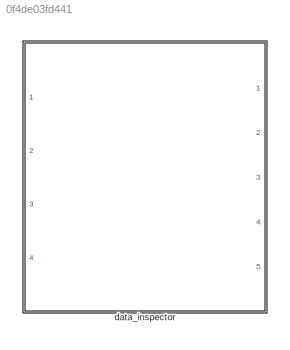
MODEL slx_0f4de03fd441
KIND library
CONFIG AbsTol = auto
CONFIG EnableMultiTasking = off
CONFIG FixedStep = auto
CONFIG MaxStep = auto
CONFIG MinStep = auto
CONFIG RelTol = 1e-3
CONFIG SampleTimeConstraint = Unconstrained
CONFIG Solver = VariableStepAuto
CONFIG SolverName = VariableStepAuto
CONFIG StartTime = 0.0
CONFIG StopTime = 10.0
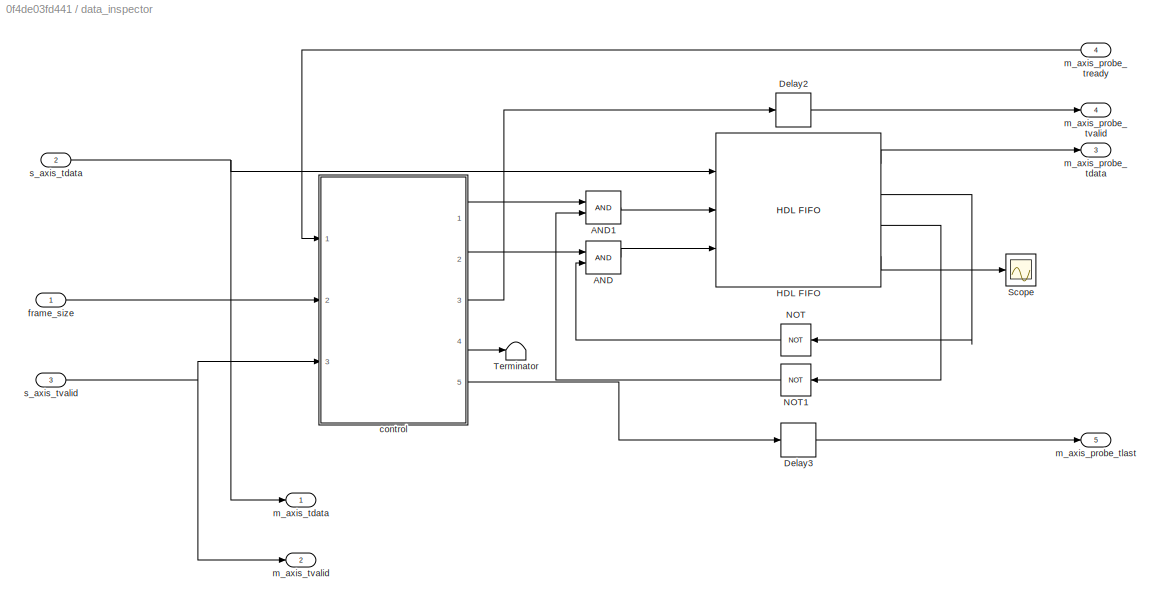
BLOCK [SubSystem] data_inspector
  Ports = [4, 5]
  RequestExecContextInheritance = off
  TreatAsAtomicUnit = on
BLOCK [Logic] data_inspector/AND
  AllPortsSameDT = off
  OutDataTypeStr = boolean
  Ports = [2, 1]
BLOCK [Logic] data_inspector/AND1
  AllPortsSameDT = off
  OutDataTypeStr = boolean
  Ports = [2, 1]
BLOCK [Delay] data_inspector/Delay2
  DelayLength = 1
  InputPortMap = u0
  Ports = [1, 1]
BLOCK [Delay] data_inspector/Delay3
  DelayLength = 1
  InputPortMap = u0
  Ports = [1, 1]
BLOCK [Reference] data_inspector/HDL FIFO  REF=hdlsllib/HDL RAMs/HDL FIFO
  Ports = [3, 4]
  SourceBlock = hdlsllib/HDL RAMs/HDL FIFO
  SourceProductBaseCode = SL
  SourceType = HDL_FIFO
BLOCK [Logic] data_inspector/NOT
  AllPortsSameDT = off
  IconShape = distinctive
  NameLocation = top
  Operator = NOT
  OutDataTypeStr = boolean
  Ports = [1, 1]
BLOCK [Logic] data_inspector/NOT1
  AllPortsSameDT = off
  IconShape = distinctive
  NameLocation = top
  Operator = NOT
  OutDataTypeStr = boolean
  Ports = [1, 1]
BLOCK [Scope] data_inspector/Scope
  Floating = off
  NumInputPorts = 1
  Ports = [1]
  ScopeSpecificationString = Simulink.scopes.TimeScopeBlockCfg('CurrentConfiguration', extmgr.ConfigurationSet(extmgr.Configuration('Core','General UI',true),extmgr.Configuration('Core','Source UI',true),extmgr.Configuration('Sources','WiredSimulink',true),extmgr.Configuration('Visuals','Time Domain',true,'SerializedDisplays',{struct('MinYLimReal','-1.125','MaxYLimReal','10.125','YLabelReal','','MinYLimMag','0.00000','MaxYLim...<+1348ch>
BLOCK [Terminator] data_inspector/Terminator
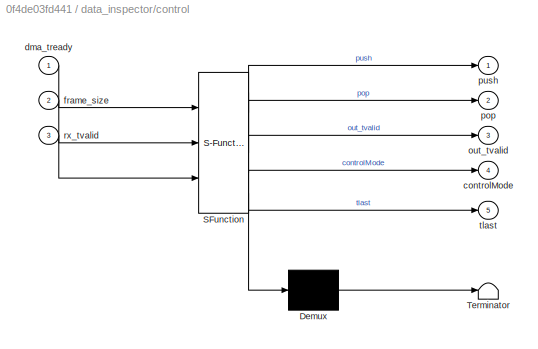
BLOCK [SubSystem] data_inspector/control
  ErrorFcn = Stateflow.Translate.translate
  PermitHierarchicalResolution = ExplicitOnly
  Ports = [3, 5]
  RequestExecContextInheritance = off
  SFBlockType = Chart
  TreatAsAtomicUnit = on
BLOCK [Demux] data_inspector/control/ Demux 
  Outputs = 1
  Ports = [1, 1]
BLOCK [S-Function] data_inspector/control/ SFunction 
  EnableBusSupport = on
  FunctionName = sf_sfun
  PortCounts = [3 6]
  Ports = [3, 6]
  SFcnIsStateOwnerBlock = off
  SFunctionDeploymentMode = off
  Tag = Stateflow S-Function 3
BLOCK [Terminator] data_inspector/control/ Terminator 
BLOCK [Outport] data_inspector/control/controlMode
  Port = 4
BLOCK [Inport] data_inspector/control/dma_tready
BLOCK [Inport] data_inspector/control/frame_size
  Port = 2
BLOCK [Outport] data_inspector/control/out_tvalid
  Port = 3
BLOCK [Outport] data_inspector/control/pop
  Port = 2
BLOCK [Outport] data_inspector/control/push
BLOCK [Inport] data_inspector/control/rx_tvalid
  Port = 3
BLOCK [Outport] data_inspector/control/tlast
  Port = 5
BLOCK [Inport] data_inspector/frame_size
BLOCK [Outport] data_inspector/m_axis_probe_tdata
  Port = 3
BLOCK [Outport] data_inspector/m_axis_probe_tlast
  Port = 5
BLOCK [Inport] data_inspector/m_axis_probe_tready
  Port = 4
BLOCK [Outport] data_inspector/m_axis_probe_tvalid
  Port = 4
BLOCK [Outport] data_inspector/m_axis_tdata
BLOCK [Outport] data_inspector/m_axis_tvalid
  Port = 2
BLOCK [Inport] data_inspector/s_axis_tdata
  Port = 2
BLOCK [Inport] data_inspector/s_axis_tvalid
  Port = 3
LINE data_inspector/AND1:1 -> data_inspector/HDL FIFO:2
LINE data_inspector/AND:1 -> data_inspector/HDL FIFO:3
LINE data_inspector/Delay2:1 -> data_inspector/m_axis_probe_tvalid:1
LINE data_inspector/Delay3:1 -> data_inspector/m_axis_probe_tlast:1
LINE data_inspector/HDL FIFO:1 -> data_inspector/m_axis_probe_tdata:1
LINE data_inspector/HDL FIFO:2 -> data_inspector/NOT:1
LINE data_inspector/HDL FIFO:3 -> data_inspector/NOT1:1
LINE data_inspector/HDL FIFO:4 -> data_inspector/Scope:1
LINE data_inspector/NOT1:1 -> data_inspector/AND1:2
LINE data_inspector/NOT:1 -> data_inspector/AND:2
LINE data_inspector/control:1 -> data_inspector/AND1:1
LINE data_inspector/control:2 -> data_inspector/AND:1
LINE data_inspector/control:3 -> data_inspector/Delay2:1
LINE data_inspector/control:4 -> data_inspector/Terminator:1
LINE data_inspector/control:5 -> data_inspector/Delay3:1
LINE data_inspector/frame_size:1 -> data_inspector/control:2
LINE data_inspector/m_axis_probe_tready:1 -> data_inspector/control:1
NET data_inspector/s_axis_tdata:1 -> data_inspector/HDL FIFO:1, data_inspector/m_axis_tdata:1
NET data_inspector/s_axis_tvalid:1 -> data_inspector/control:3, data_inspector/m_axis_tvalid:1
note: NET lines group one-source signal fan-out (src -> all destinations, sorted); 1:1 wires keep LINE
CHART data_inspector/control states=8 transitions=17
  STATE_LABEL 'init\n% variables\ndata_count=0;\n% outputs\npush = false\npop = false\nout_tvalid = false\ntlast = false'
  STATE_LABEL 'fill_frame\n% variables\ndata_count = data_count + 1\n% outputs\npush = true\npop = false\nout_tvalid = false\ntlast = false'
  STATE_LABEL 'idle1\n% outputs\npush = false\npop = false\nout_tvalid = false\ntlast = false'
  STATE_LABEL 'update\n% outputs\npush = true\npop = true\nout_tvalid = false\ntlast = false'
  STATE_LABEL 'dma_read\n% variables\ndata_count = data_count - 1\n% outputs\npush = false\npop = true\nout_tvalid = true\ntlast = false'
  STATE_LABEL 'idle\n% outputs\npush = false\npop = false\nout_tvalid = false\ntlast = false'
  STATE_LABEL 'dma_tlast\n% variables\ndata_count = data_count - 1\n% outputs\npush = false\npop = true\nout_tvalid = true\ntlast = true'
  STATE_LABEL 'idle2\n% outputs\npush = false\npop = false\nout_tvalid = false\ntlast = false'
CHART  states=0 transitions=0
